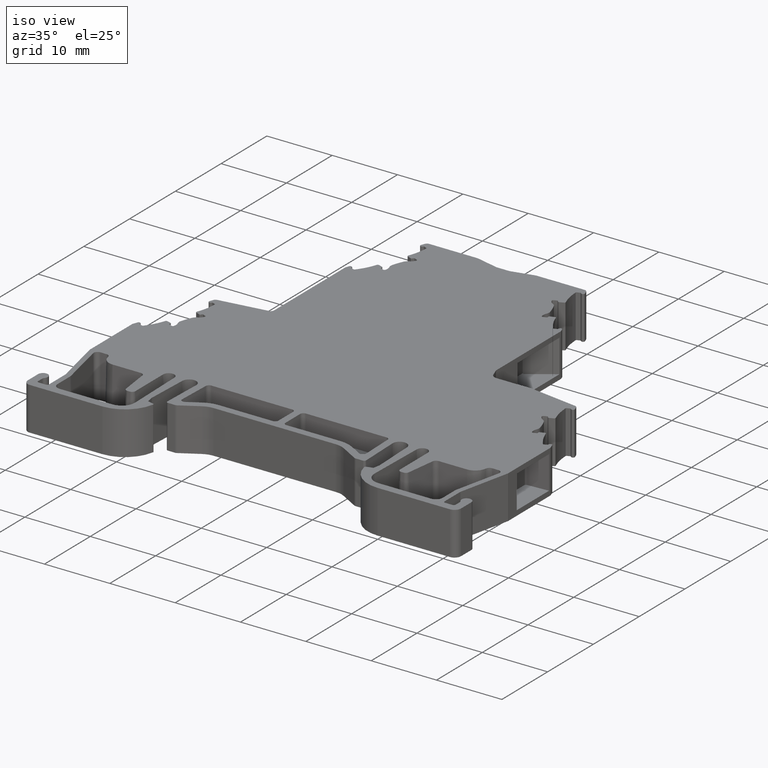
[diagram: clean part render]
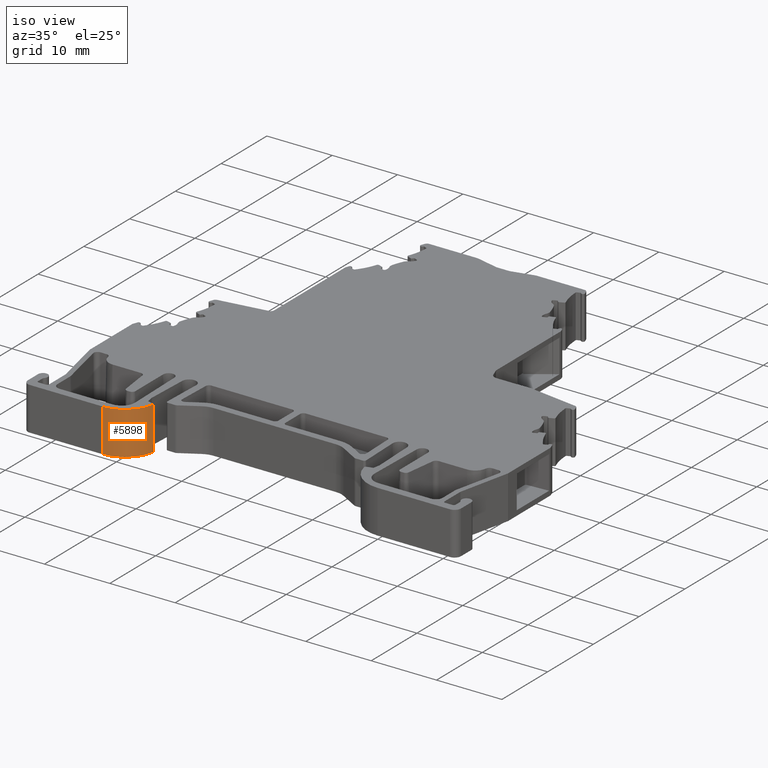
[diagram: same view with one face highlighted and labeled with its STEP entity id]
A machine part, iso view. The second image highlights one B-rep face of the part: STEP entity #5898.
In plain terms, the highlighted cylindrical surface (partial cylindrical patch) has radius 5 mm, axis along (0, 0, -1).
Its self-contained STEP definition (entity closure, byte-faithful):
#1534 = VERTEX_POINT ( 'NONE', #8188 ) ;
#1614 = VERTEX_POINT ( 'NONE', #12794 ) ;
#1749 = VERTEX_POINT ( 'NONE', #12957 ) ;
#1760 = VERTEX_POINT ( 'NONE', #12948 ) ;
#3740 = FACE_OUTER_BOUND ( 'NONE', #5088, .T. ) ;
#3756 = DIRECTION ( 'NONE',  ( 0.0000000000000000000, 0.0000000000000000000, -1.000000000000000000 ) ) ;
#3759 = CYLINDRICAL_SURFACE ( 'NONE', #11288, 5.000000000001864300 ) ;
#3761 = CARTESIAN_POINT ( 'NONE',  ( -21.08877452094463900, -26.55153548068118900, 5.883087449936323500 ) ) ;
#3764 = DIRECTION ( 'NONE',  ( -1.000000000000000000, 0.0000000000000000000, 0.0000000000000000000 ) ) ;
#4050 = EDGE_CURVE ( 'NONE', #1534, #1614, #13021, .T. ) ;
#4545 = EDGE_CURVE ( 'NONE', #1614, #1749, #9616, .T. ) ;
#4674 = EDGE_CURVE ( 'NONE', #1749, #1760, #8849, .T. ) ;
#4681 = EDGE_CURVE ( 'NONE', #1760, #1534, #9797, .T. ) ;
#5088 = EDGE_LOOP ( 'NONE', ( #12118, #12103, #12070, #12098 ) ) ;
#5898 = ADVANCED_FACE ( 'NONE', ( #3740 ), #3759, .T. ) ;
#8188 = CARTESIAN_POINT ( 'NONE',  ( -16.17248701606099500, -27.46264314135779800, -0.3419125500636775400 ) ) ;
#8849 = LINE ( 'NONE', #8870, #9789 ) ;
#8870 = CARTESIAN_POINT ( 'NONE',  ( -21.08877788296953800, -31.55153548068192400, 5.883087449936323500 ) ) ;
#8887 = DIRECTION ( 'NONE',  ( 0.0000000000000000000, 0.0000000000000000000, -1.000000000000000000 ) ) ;
#8893 = CARTESIAN_POINT ( 'NONE',  ( -21.08877452094463900, -26.55153548068118900, -0.3419125500636775400 ) ) ;
#8894 = DIRECTION ( 'NONE',  ( 0.0000000000000000000, 0.0000000000000000000, 1.000000000000000000 ) ) ;
#8895 = DIRECTION ( 'NONE',  ( 1.000000000000000000, 0.0000000000000000000, 0.0000000000000000000 ) ) ;
#8984 = DIRECTION ( 'NONE',  ( 1.000000000000000000, 0.0000000000000000000, 0.0000000000000000000 ) ) ;
#8985 = DIRECTION ( 'NONE',  ( -0.0000000000000000000, -0.0000000000000000000, -1.000000000000000000 ) ) ;
#8991 = CARTESIAN_POINT ( 'NONE',  ( -21.08877452094463900, -26.55153548068118900, 6.258087449936324400 ) ) ;
#9144 = VECTOR ( 'NONE', #13044, 1000.000000000000000 ) ;
#9616 = CIRCLE ( 'NONE', #9666, 5.000000000001864300 ) ;
#9666 = AXIS2_PLACEMENT_3D ( 'NONE', #8991, #8985, #8984 ) ;
#9767 = AXIS2_PLACEMENT_3D ( 'NONE', #8893, #8894, #8895 ) ;
#9789 = VECTOR ( 'NONE', #8887, 1000.000000000000000 ) ;
#9797 = CIRCLE ( 'NONE', #9767, 5.000000000001864300 ) ;
#11288 = AXIS2_PLACEMENT_3D ( 'NONE', #3761, #3756, #3764 ) ;
#12070 = ORIENTED_EDGE ( 'NONE', *, *, #4681, .T. ) ;
#12098 = ORIENTED_EDGE ( 'NONE', *, *, #4050, .T. ) ;
#12103 = ORIENTED_EDGE ( 'NONE', *, *, #4674, .T. ) ;
#12118 = ORIENTED_EDGE ( 'NONE', *, *, #4545, .T. ) ;
#12794 = CARTESIAN_POINT ( 'NONE',  ( -16.17248701606099500, -27.46264314135779800, 6.258087449936324400 ) ) ;
#12948 = CARTESIAN_POINT ( 'NONE',  ( -21.08877788296953800, -31.55153548068192400, -0.3419125500636775400 ) ) ;
#12957 = CARTESIAN_POINT ( 'NONE',  ( -21.08877788296953800, -31.55153548068192400, 6.258087449936324400 ) ) ;
#13021 = LINE ( 'NONE', #13040, #9144 ) ;
#13040 = CARTESIAN_POINT ( 'NONE',  ( -16.17248701606099500, -27.46264314135779800, 5.883087449936323500 ) ) ;
#13044 = DIRECTION ( 'NONE',  ( -0.0000000000000000000, -0.0000000000000000000, 1.000000000000000000 ) ) ;